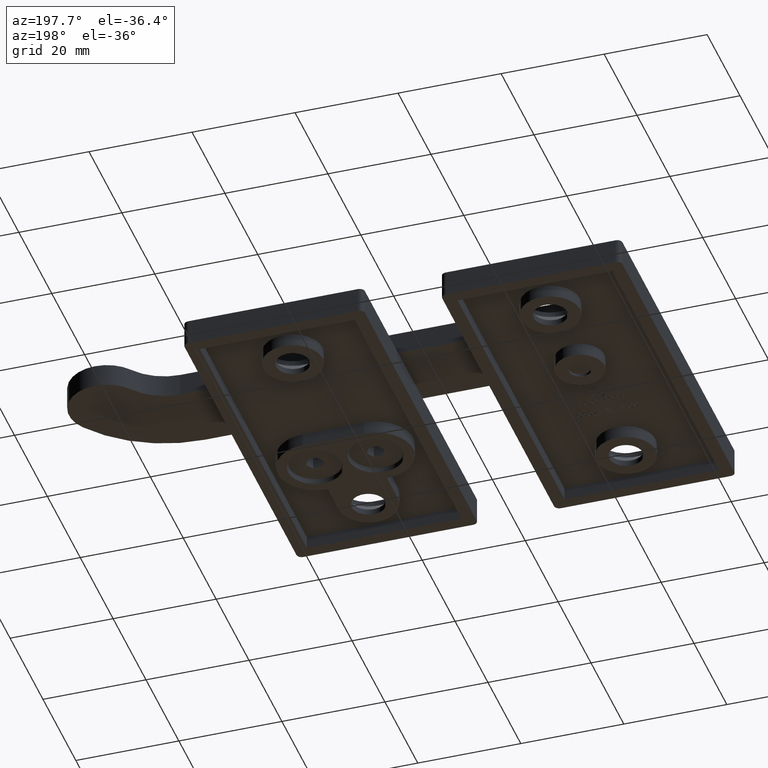
[diagram: clean part render]
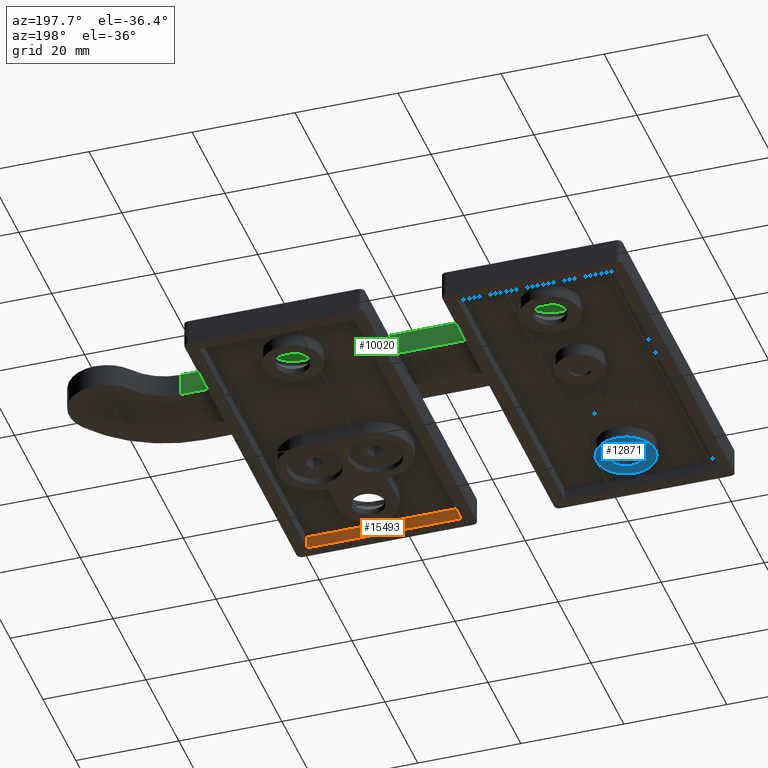
[diagram: same view with three faces highlighted in distinct colors, each labeled with its STEP entity id]
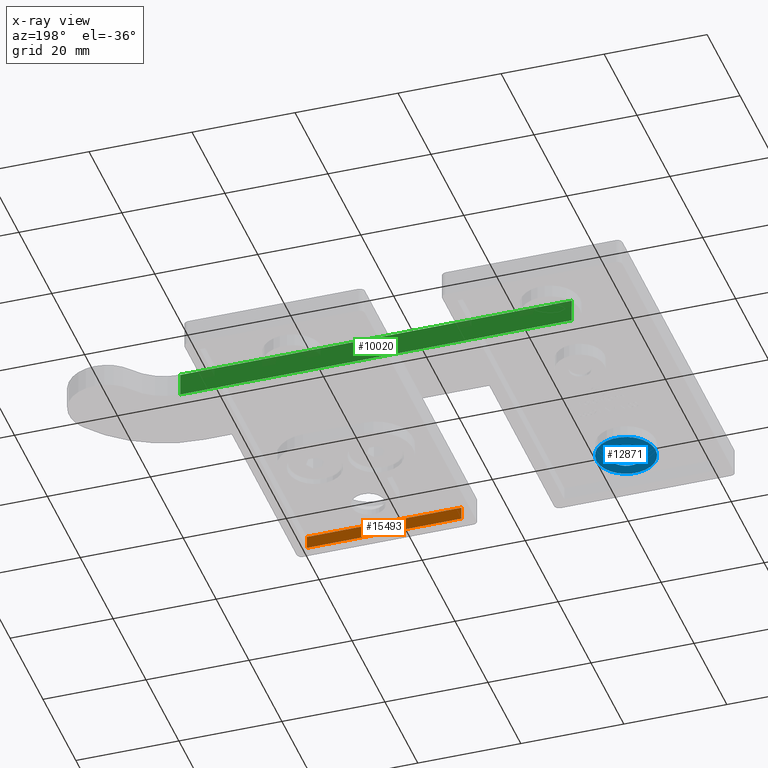
[diagram: x-ray of the same camera — body ghosted, the three highlighted faces saturated]
A machine part, auxiliary view with three faces highlighted in distinct colors.
The next image is the same camera in x-ray (body ghosted, the three faces saturated) — at least one of them is partly hidden behind the body in this view.
Their STEP definitions:

[orange] entity #15493 — the highlighted planar face has unit normal (0, -1, 0).
#547 = LINE ( 'NONE', #8690, #7120 ) ;
#1243 = DIRECTION ( 'NONE',  ( 0.000000000000000000, -0.000000000000000000, -1.000000000000000000 ) ) ;
#1616 = AXIS2_PLACEMENT_3D ( 'NONE', #2702, #2504, #1243 ) ;
#2504 = DIRECTION ( 'NONE',  ( 0.000000000000000000, -1.000000000000000000, 0.000000000000000000 ) ) ;
#2702 = CARTESIAN_POINT ( 'NONE',  ( 15.00000000000000355, -32.49999999999999289, 0.000000000000000000 ) ) ;
#3048 = VERTEX_POINT ( 'NONE', #19517 ) ;
#5028 = EDGE_CURVE ( 'NONE', #13281, #10923, #6873, .T. ) ;
#6280 = CARTESIAN_POINT ( 'NONE',  ( -15.00000000000000178, -32.49999999999999289, 0.000000000000000000 ) ) ;
#6873 = LINE ( 'NONE', #11962, #14486 ) ;
#7120 = VECTOR ( 'NONE', #13198, 1000.000000000000000 ) ;
#7194 = DIRECTION ( 'NONE',  ( -1.000000000000000000, 0.000000000000000000, 0.000000000000000000 ) ) ;
#7369 = CARTESIAN_POINT ( 'NONE',  ( 15.00000000000000355, -32.49999999999999289, -2.500000000000000000 ) ) ;
#7545 = EDGE_CURVE ( 'NONE', #15086, #3048, #18636, .T. ) ;
#8690 = CARTESIAN_POINT ( 'NONE',  ( 15.00000000000000355, -32.49999999999999289, -2.500000000000000000 ) ) ;
#9815 = EDGE_CURVE ( 'NONE', #13281, #15086, #16655, .T. ) ;
#10757 = VECTOR ( 'NONE', #7194, 1000.000000000000000 ) ;
#10923 = VERTEX_POINT ( 'NONE', #7369 ) ;
#11516 = ORIENTED_EDGE ( 'NONE', *, *, #5028, .T. ) ;
#11559 = PLANE ( 'NONE',  #1616 ) ;
#11666 = ORIENTED_EDGE ( 'NONE', *, *, #13173, .T. ) ;
#11962 = CARTESIAN_POINT ( 'NONE',  ( 15.00000000000000355, -32.49999999999999289, 0.000000000000000000 ) ) ;
#12200 = CARTESIAN_POINT ( 'NONE',  ( -15.00000000000000178, -32.49999999999999289, 0.000000000000000000 ) ) ;
#13173 = EDGE_CURVE ( 'NONE', #10923, #3048, #547, .T. ) ;
#13198 = DIRECTION ( 'NONE',  ( -1.000000000000000000, 0.000000000000000000, 0.000000000000000000 ) ) ;
#13281 = VERTEX_POINT ( 'NONE', #13590 ) ;
#13473 = DIRECTION ( 'NONE',  ( -0.000000000000000000, -0.000000000000000000, -1.000000000000000000 ) ) ;
#13590 = CARTESIAN_POINT ( 'NONE',  ( 15.00000000000000355, -32.49999999999999289, 0.000000000000000000 ) ) ;
#14366 = VECTOR ( 'NONE', #18391, 1000.000000000000000 ) ;
#14486 = VECTOR ( 'NONE', #13473, 1000.000000000000000 ) ;
#15086 = VERTEX_POINT ( 'NONE', #12200 ) ;
#15493 = ADVANCED_FACE ( 'NONE', ( #17947 ), #11559, .F. ) ;
#15558 = ORIENTED_EDGE ( 'NONE', *, *, #9815, .F. ) ;
#16655 = LINE ( 'NONE', #19255, #10757 ) ;
#16728 = EDGE_LOOP ( 'NONE', ( #11666, #19377, #15558, #11516 ) ) ;
#17947 = FACE_OUTER_BOUND ( 'NONE', #16728, .T. ) ;
#18391 = DIRECTION ( 'NONE',  ( -0.000000000000000000, -0.000000000000000000, -1.000000000000000000 ) ) ;
#18636 = LINE ( 'NONE', #6280, #14366 ) ;
#19255 = CARTESIAN_POINT ( 'NONE',  ( 15.00000000000000355, -32.49999999999999289, 0.000000000000000000 ) ) ;
#19377 = ORIENTED_EDGE ( 'NONE', *, *, #7545, .F. ) ;
#19517 = CARTESIAN_POINT ( 'NONE',  ( -15.00000000000000178, -32.49999999999999289, -2.500000000000000000 ) ) ;

[blue] entity #12871 — the highlighted planar face has unit normal (0, 0, 1).
#1320 = ORIENTED_EDGE ( 'NONE', *, *, #13414, .T. ) ;
#3864 = DIRECTION ( 'NONE',  ( 0.000000000000000000, 0.000000000000000000, -1.000000000000000000 ) ) ;
#5502 = AXIS2_PLACEMENT_3D ( 'NONE', #15880, #3864, #15817 ) ;
#5734 = FACE_OUTER_BOUND ( 'NONE', #10653, .T. ) ;
#6369 = AXIS2_PLACEMENT_3D ( 'NONE', #18572, #9600, #7981 ) ;
#6520 = CARTESIAN_POINT ( 'NONE',  ( 0.000000000000000000, 0.000000000000000000, -2.500000000000000000 ) ) ;
#7981 = DIRECTION ( 'NONE',  ( 1.000000000000000000, 0.000000000000000000, 0.000000000000000000 ) ) ;
#8880 = VERTEX_POINT ( 'NONE', #15554 ) ;
#8921 = AXIS2_PLACEMENT_3D ( 'NONE', #6520, #17359, #11093 ) ;
#9535 = PLANE ( 'NONE',  #8921 ) ;
#9547 = FACE_BOUND ( 'NONE', #18852, .T. ) ;
#9600 = DIRECTION ( 'NONE',  ( -0.000000000000000000, 0.000000000000000000, 1.000000000000000000 ) ) ;
#10653 = EDGE_LOOP ( 'NONE', ( #1320 ) ) ;
#11093 = DIRECTION ( 'NONE',  ( 1.000000000000000000, 0.000000000000000000, 0.000000000000000000 ) ) ;
#11106 = EDGE_CURVE ( 'NONE', #8880, #8880, #16866, .T. ) ;
#12336 = CIRCLE ( 'NONE', #5502, 5.750000000000000888 ) ;
#12425 = VERTEX_POINT ( 'NONE', #19527 ) ;
#12871 = ADVANCED_FACE ( 'NONE', ( #9547, #5734 ), #9535, .F. ) ;
#13414 = EDGE_CURVE ( 'NONE', #12425, #12425, #12336, .T. ) ;
#15554 = CARTESIAN_POINT ( 'NONE',  ( 3.250000000000007105, -23.00000000000000000, -2.500000000000000000 ) ) ;
#15817 = DIRECTION ( 'NONE',  ( -1.000000000000000000, 0.000000000000000000, 0.000000000000000000 ) ) ;
#15880 = CARTESIAN_POINT ( 'NONE',  ( 0.000000000000000000, -23.00000000000000000, -2.500000000000000000 ) ) ;
#16535 = ORIENTED_EDGE ( 'NONE', *, *, #11106, .T. ) ;
#16866 = CIRCLE ( 'NONE', #6369, 3.250000000000007105 ) ;
#17359 = DIRECTION ( 'NONE',  ( -0.000000000000000000, 0.000000000000000000, 1.000000000000000000 ) ) ;
#18572 = CARTESIAN_POINT ( 'NONE',  ( 0.000000000000000000, -23.00000000000000000, -2.500000000000000000 ) ) ;
#18852 = EDGE_LOOP ( 'NONE', ( #16535 ) ) ;
#19527 = CARTESIAN_POINT ( 'NONE',  ( -5.750000000000000888, -23.00000000000000000, -2.500000000000000000 ) ) ;

[green] entity #10020 — the highlighted planar face has unit normal (-0, -1, -0).
#73 = EDGE_CURVE ( 'NONE', #5462, #6053, #7438, .T. ) ;
#692 = EDGE_CURVE ( 'NONE', #18712, #14742, #15728, .T. ) ;
#1049 = CARTESIAN_POINT ( 'NONE',  ( 45.09546788749680957, -7.400000000000008349, 2.250000000000000444 ) ) ;
#1141 = ORIENTED_EDGE ( 'NONE', *, *, #73, .F. ) ;
#1448 = DIRECTION ( 'NONE',  ( 1.941469482826852748E-16, 1.000000000000000000, -9.403954806578311757E-37 ) ) ;
#2509 = VECTOR ( 'NONE', #14858, 1000.000000000000000 ) ;
#2634 = DIRECTION ( 'NONE',  ( 1.000000000000000000, -1.941469482826853241E-16, 2.821186441973494195E-37 ) ) ;
#2750 = CARTESIAN_POINT ( 'NONE',  ( 45.09546788749680957, -7.400000000000008349, 2.250000000000000444 ) ) ;
#5353 = VECTOR ( 'NONE', #16058, 1000.000000000000000 ) ;
#5462 = VERTEX_POINT ( 'NONE', #2750 ) ;
#6053 = VERTEX_POINT ( 'NONE', #7751 ) ;
#6536 = ORIENTED_EDGE ( 'NONE', *, *, #18362, .F. ) ;
#7438 = LINE ( 'NONE', #1049, #2509 ) ;
#7751 = CARTESIAN_POINT ( 'NONE',  ( 45.09546788749680957, -7.400000000000008349, -2.250000000000000000 ) ) ;
#8087 = ORIENTED_EDGE ( 'NONE', *, *, #14920, .T. ) ;
#9671 = CARTESIAN_POINT ( 'NONE',  ( -30.85292932518222031, -7.399999999999980815, 2.250000000000000444 ) ) ;
#10020 = ADVANCED_FACE ( 'NONE', ( #16182 ), #15114, .F. ) ;
#11716 = VECTOR ( 'NONE', #16845, 1000.000000000000000 ) ;
#12551 = ORIENTED_EDGE ( 'NONE', *, *, #692, .T. ) ;
#12805 = CARTESIAN_POINT ( 'NONE',  ( -30.85292932518222031, -7.399999999999980815, -2.250000000000000000 ) ) ;
#13754 = CARTESIAN_POINT ( 'NONE',  ( -30.85292932518222031, -7.399999999999980815, 2.250000000000000444 ) ) ;
#14235 = AXIS2_PLACEMENT_3D ( 'NONE', #19511, #1448, #19392 ) ;
#14742 = VERTEX_POINT ( 'NONE', #12805 ) ;
#14858 = DIRECTION ( 'NONE',  ( -2.821186441973490019E-37, 1.128474576789396008E-36, -1.000000000000000000 ) ) ;
#14920 = EDGE_CURVE ( 'NONE', #14742, #6053, #17017, .T. ) ;
#15114 = PLANE ( 'NONE',  #14235 ) ;
#15610 = VECTOR ( 'NONE', #2634, 1000.000000000000000 ) ;
#15728 = LINE ( 'NONE', #13754, #11716 ) ;
#15742 = CARTESIAN_POINT ( 'NONE',  ( -30.85292932518222031, -7.399999999999973710, 2.250000000000000444 ) ) ;
#16058 = DIRECTION ( 'NONE',  ( 1.000000000000000000, -1.941469482826853241E-16, 2.821186441973494195E-37 ) ) ;
#16182 = FACE_OUTER_BOUND ( 'NONE', #19498, .T. ) ;
#16447 = LINE ( 'NONE', #15742, #5353 ) ;
#16845 = DIRECTION ( 'NONE',  ( -2.821186441973490019E-37, 1.128474576789396008E-36, -1.000000000000000000 ) ) ;
#17017 = LINE ( 'NONE', #17624, #15610 ) ;
#17624 = CARTESIAN_POINT ( 'NONE',  ( -30.85292932518222031, -7.399999999999973710, -2.250000000000000000 ) ) ;
#18362 = EDGE_CURVE ( 'NONE', #18712, #5462, #16447, .T. ) ;
#18712 = VERTEX_POINT ( 'NONE', #9671 ) ;
#19392 = DIRECTION ( 'NONE',  ( -1.000000000000000000, 1.941469482826852748E-16, -2.350988701644578357E-37 ) ) ;
#19498 = EDGE_LOOP ( 'NONE', ( #8087, #1141, #6536, #12551 ) ) ;
#19511 = CARTESIAN_POINT ( 'NONE',  ( -30.85292932518222031, -7.399999999999973710, 2.250000000000000444 ) ) ;